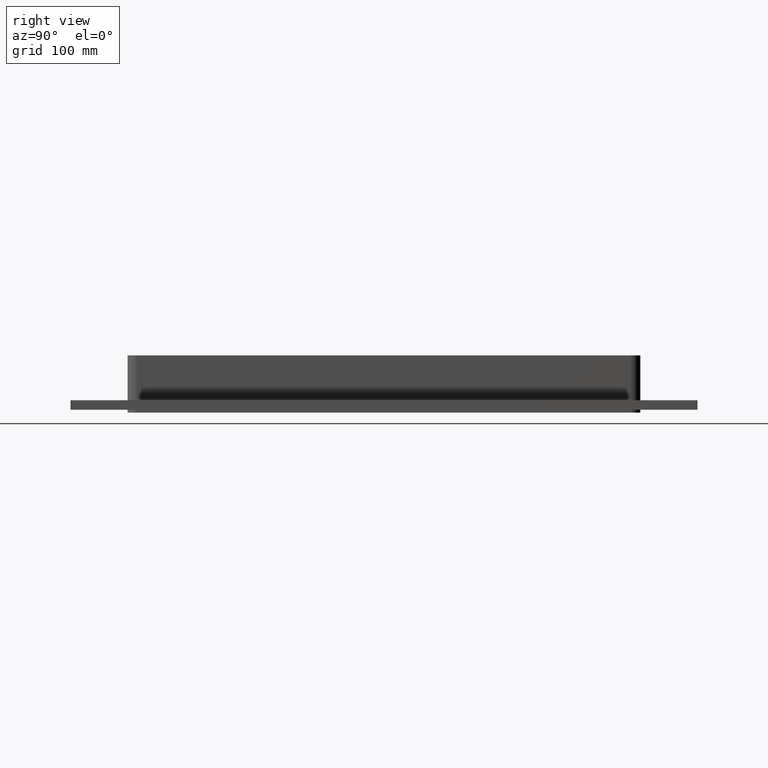
[diagram: clean part render]
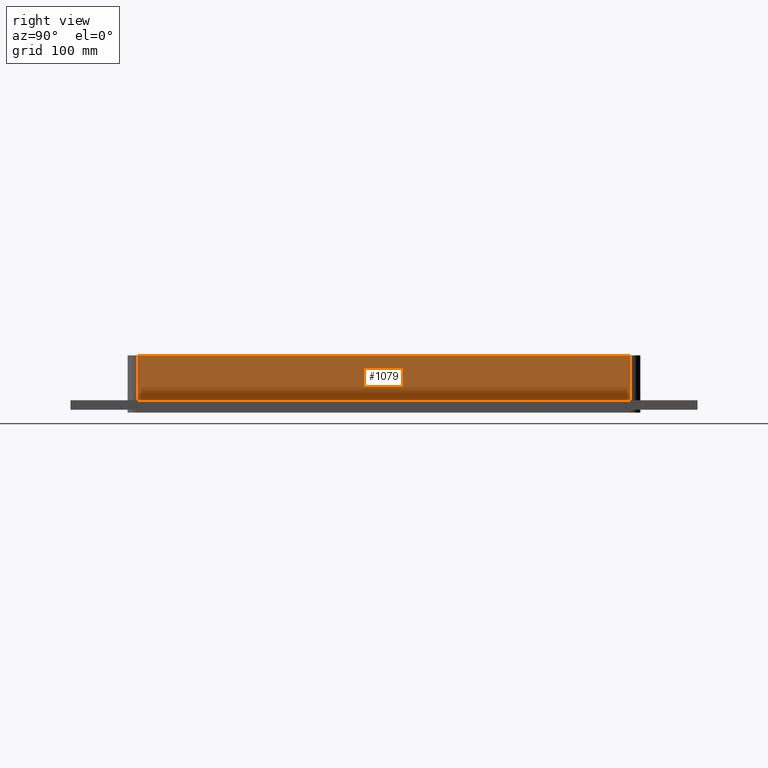
[diagram: same view with one face highlighted and labeled with its STEP entity id]
A machine part, right view. The second image highlights one B-rep face of the part: STEP entity #1079.
In plain terms, the highlighted planar face has unit normal (1, 0, 0).
Its self-contained STEP definition (entity closure, byte-faithful):
#761=CARTESIAN_POINT('',(135.49999999999997,259.25000000000006,-17.0));
#762=VERTEX_POINT('',#761);
#772=CARTESIAN_POINT('',(135.50000000000006,-259.25000000000006,-17.0));
#773=VERTEX_POINT('',#772);
#774=CARTESIAN_POINT('',(135.50000000000003,-259.25000000000006,-17.0));
#775=DIRECTION('',(0.0,1.0,0.0));
#776=VECTOR('',#775,518.5);
#777=LINE('',#774,#776);
#778=EDGE_CURVE('',#773,#762,#777,.T.);
#1006=CARTESIAN_POINT('',(135.50000000000006,-259.25,30.0));
#1007=VERTEX_POINT('',#1006);
#1008=CARTESIAN_POINT('',(135.50000000000006,-259.25,-17.0));
#1009=DIRECTION('',(0.0,0.0,1.0));
#1010=VECTOR('',#1009,47.0);
#1011=LINE('',#1008,#1010);
#1012=EDGE_CURVE('',#773,#1007,#1011,.T.);
#1056=CARTESIAN_POINT('',(135.50000000000006,-269.25,0.0));
#1057=DIRECTION('',(1.0,0.0,0.0));
#1058=DIRECTION('',(0.0,1.0,0.0));
#1059=AXIS2_PLACEMENT_3D('',#1056,#1057,#1058);
#1060=PLANE('',#1059);
#1061=ORIENTED_EDGE('',*,*,#778,.T.);
#1062=CARTESIAN_POINT('',(135.49999999999994,259.25000000000006,30.0));
#1063=VERTEX_POINT('',#1062);
#1064=CARTESIAN_POINT('',(135.49999999999994,259.25000000000006,30.0));
#1065=DIRECTION('',(0.0,0.0,-1.0));
#1066=VECTOR('',#1065,47.0);
#1067=LINE('',#1064,#1066);
#1068=EDGE_CURVE('',#1063,#762,#1067,.T.);
#1069=ORIENTED_EDGE('',*,*,#1068,.F.);
#1070=CARTESIAN_POINT('',(135.50000000000006,-259.25,30.0));
#1071=DIRECTION('',(0.0,1.0,0.0));
#1072=VECTOR('',#1071,518.5);
#1073=LINE('',#1070,#1072);
#1074=EDGE_CURVE('',#1007,#1063,#1073,.T.);
#1075=ORIENTED_EDGE('',*,*,#1074,.F.);
#1076=ORIENTED_EDGE('',*,*,#1012,.F.);
#1077=EDGE_LOOP('',(#1061,#1069,#1075,#1076));
#1078=FACE_OUTER_BOUND('',#1077,.T.);
#1079=ADVANCED_FACE('',(#1078),#1060,.T.);